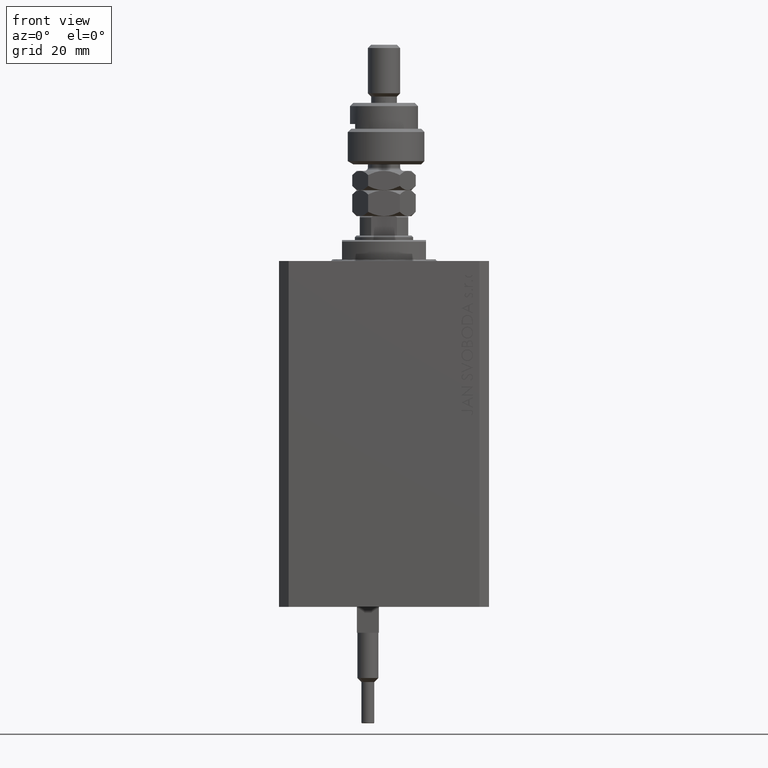
[diagram: clean part render]
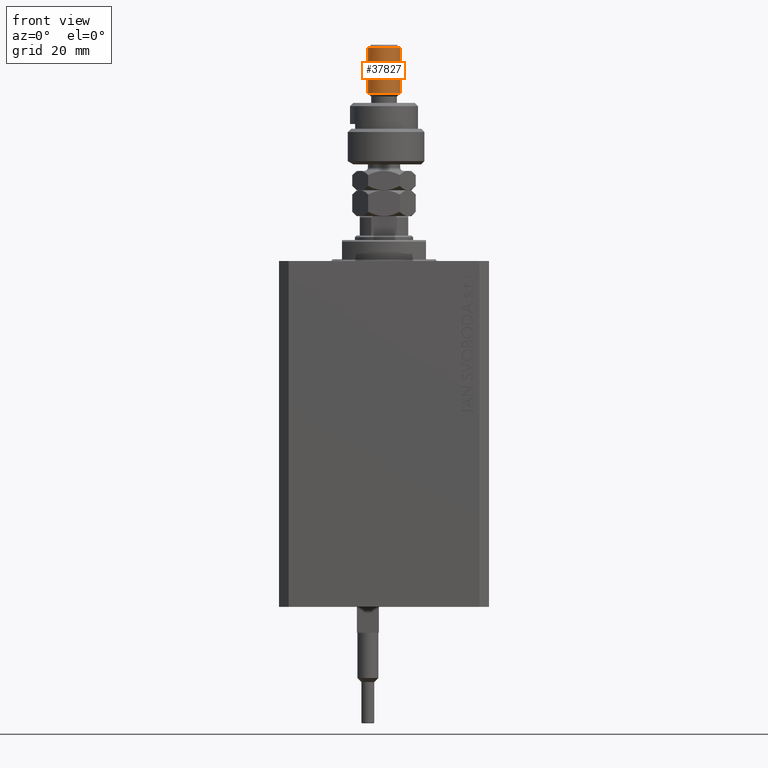
[diagram: same view with one face highlighted and labeled with its STEP entity id]
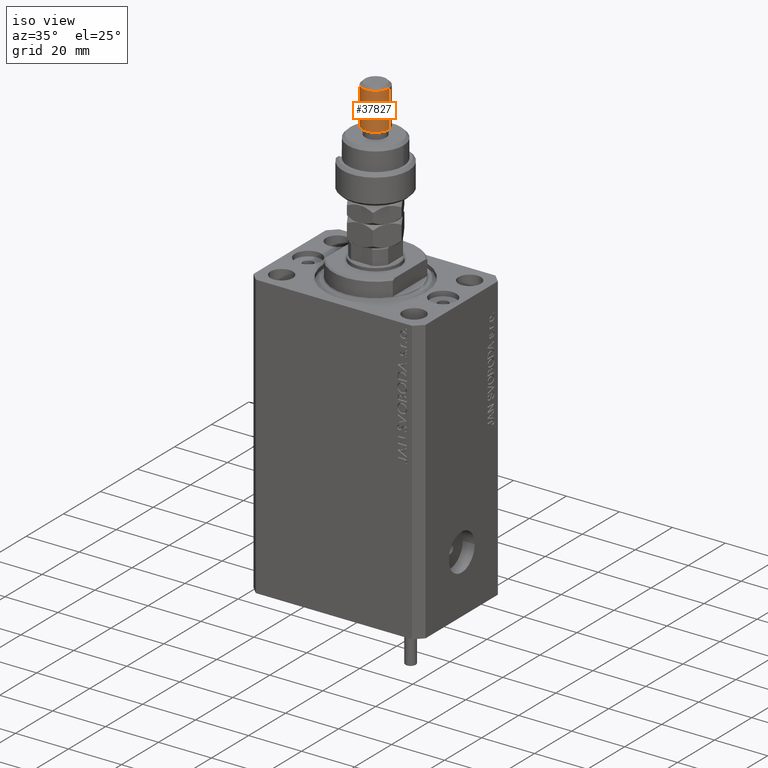
[diagram: same view with one face highlighted and labeled with its STEP entity id]
A machine part, front view. The second image highlights one B-rep face of the part: STEP entity #37827.
A second angle (iso view) of the same face is appended — the face is thin or edge-on in the first view.
In plain terms, the highlighted cylindrical surface (edge-blend (fillet) strip) has radius 5 mm, axis along (-0, -0, -1).
Its self-contained STEP definition (entity closure, byte-faithful):
#2409 = CARTESIAN_POINT ( 'NONE',  ( 0.000000000000000000, 0.000000000000000000, 37.00000000000000000 ) ) ;
#3825 = EDGE_LOOP ( 'NONE', ( #43341, #18538, #8861, #27685 ) ) ;
#6059 = AXIS2_PLACEMENT_3D ( 'NONE', #6329, #45384, #41793 ) ;
#6329 = CARTESIAN_POINT ( 'NONE',  ( 0.000000000000000000, 0.000000000000000000, 22.00000000000000000 ) ) ;
#8861 = ORIENTED_EDGE ( 'NONE', *, *, #15364, .T. ) ;
#9221 = VERTEX_POINT ( 'NONE', #15494 ) ;
#11789 = CARTESIAN_POINT ( 'NONE',  ( -5.000000000000000000, 0.000000000000000000, 37.00000000000000000 ) ) ;
#11796 = DIRECTION ( 'NONE',  ( -0.000000000000000000, -0.000000000000000000, -1.000000000000000000 ) ) ;
#12037 = DIRECTION ( 'NONE',  ( -0.000000000000000000, -0.000000000000000000, -1.000000000000000000 ) ) ;
#15191 = VERTEX_POINT ( 'NONE', #33395 ) ;
#15326 = CARTESIAN_POINT ( 'NONE',  ( 5.000000000000000000, 6.123233995736766282E-16, 36.00000000000000711 ) ) ;
#15364 = EDGE_CURVE ( 'NONE', #15191, #47135, #19212, .T. ) ;
#15494 = CARTESIAN_POINT ( 'NONE',  ( 5.000000000000000000, 6.123233995736766282E-16, 22.00000000000000000 ) ) ;
#16137 = CARTESIAN_POINT ( 'NONE',  ( 5.000000000000000000, 6.123233995736766282E-16, 37.00000000000000000 ) ) ;
#18538 = ORIENTED_EDGE ( 'NONE', *, *, #27795, .T. ) ;
#19212 = LINE ( 'NONE', #11789, #36221 ) ;
#20875 = DIRECTION ( 'NONE',  ( 1.000000000000000000, 0.000000000000000000, 0.000000000000000000 ) ) ;
#24158 = AXIS2_PLACEMENT_3D ( 'NONE', #2409, #30410, #38633 ) ;
#27685 = ORIENTED_EDGE ( 'NONE', *, *, #50335, .T. ) ;
#27795 = EDGE_CURVE ( 'NONE', #32880, #15191, #30271, .T. ) ;
#28196 = CIRCLE ( 'NONE', #6059, 5.000000000000000000 ) ;
#30271 = CIRCLE ( 'NONE', #47510, 5.000000000000000000 ) ;
#30410 = DIRECTION ( 'NONE',  ( -0.000000000000000000, -0.000000000000000000, -1.000000000000000000 ) ) ;
#32880 = VERTEX_POINT ( 'NONE', #15326 ) ;
#33395 = CARTESIAN_POINT ( 'NONE',  ( -5.000000000000000000, 0.000000000000000000, 36.00000000000000711 ) ) ;
#34700 = EDGE_CURVE ( 'NONE', #32880, #9221, #39556, .T. ) ;
#35183 = CARTESIAN_POINT ( 'NONE',  ( -5.000000000000000000, 0.000000000000000000, 22.00000000000000000 ) ) ;
#36221 = VECTOR ( 'NONE', #12037, 1000.000000000000000 ) ;
#37827 = ADVANCED_FACE ( 'NONE', ( #45835 ), #38379, .T. ) ;
#38379 = CYLINDRICAL_SURFACE ( 'NONE', #24158, 5.000000000000000000 ) ;
#38633 = DIRECTION ( 'NONE',  ( -1.000000000000000000, 0.000000000000000000, 0.000000000000000000 ) ) ;
#39556 = LINE ( 'NONE', #16137, #45541 ) ;
#41793 = DIRECTION ( 'NONE',  ( 1.000000000000000000, 0.000000000000000000, 0.000000000000000000 ) ) ;
#43341 = ORIENTED_EDGE ( 'NONE', *, *, #34700, .F. ) ;
#43778 = CARTESIAN_POINT ( 'NONE',  ( 0.000000000000000000, 0.000000000000000000, 36.00000000000000711 ) ) ;
#44029 = DIRECTION ( 'NONE',  ( 0.000000000000000000, 0.000000000000000000, -1.000000000000000000 ) ) ;
#45384 = DIRECTION ( 'NONE',  ( -0.000000000000000000, -0.000000000000000000, 1.000000000000000000 ) ) ;
#45541 = VECTOR ( 'NONE', #11796, 1000.000000000000000 ) ;
#45835 = FACE_OUTER_BOUND ( 'NONE', #3825, .T. ) ;
#47135 = VERTEX_POINT ( 'NONE', #35183 ) ;
#47510 = AXIS2_PLACEMENT_3D ( 'NONE', #43778, #44029, #20875 ) ;
#50335 = EDGE_CURVE ( 'NONE', #47135, #9221, #28196, .T. ) ;